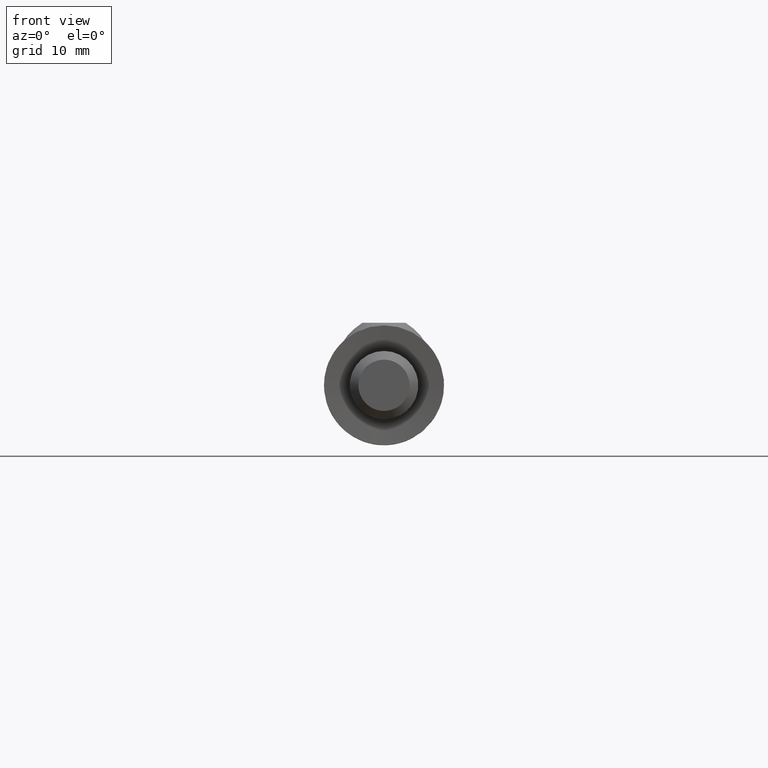
[diagram: clean part render]
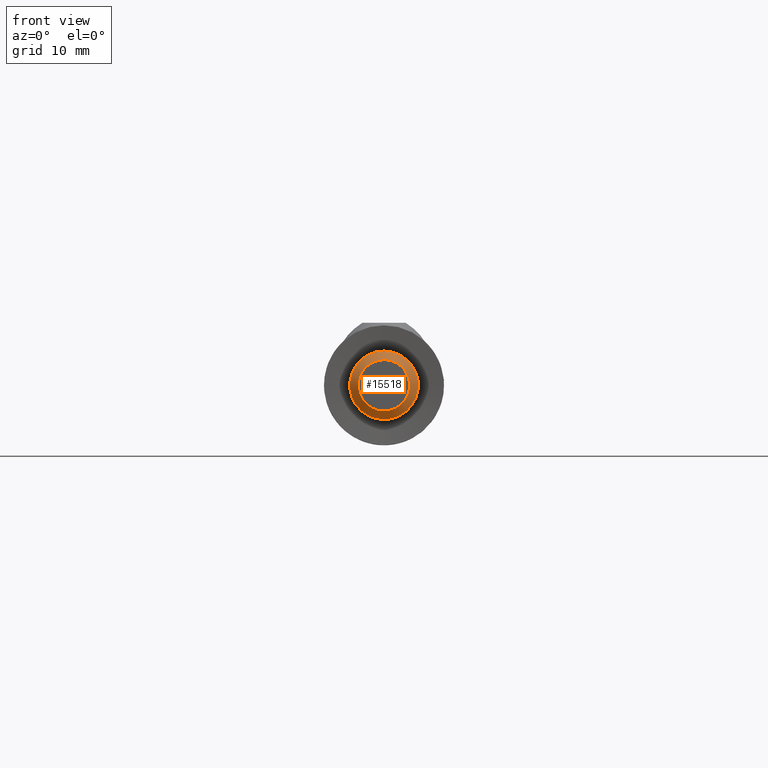
[diagram: same view with one face highlighted and labeled with its STEP entity id]
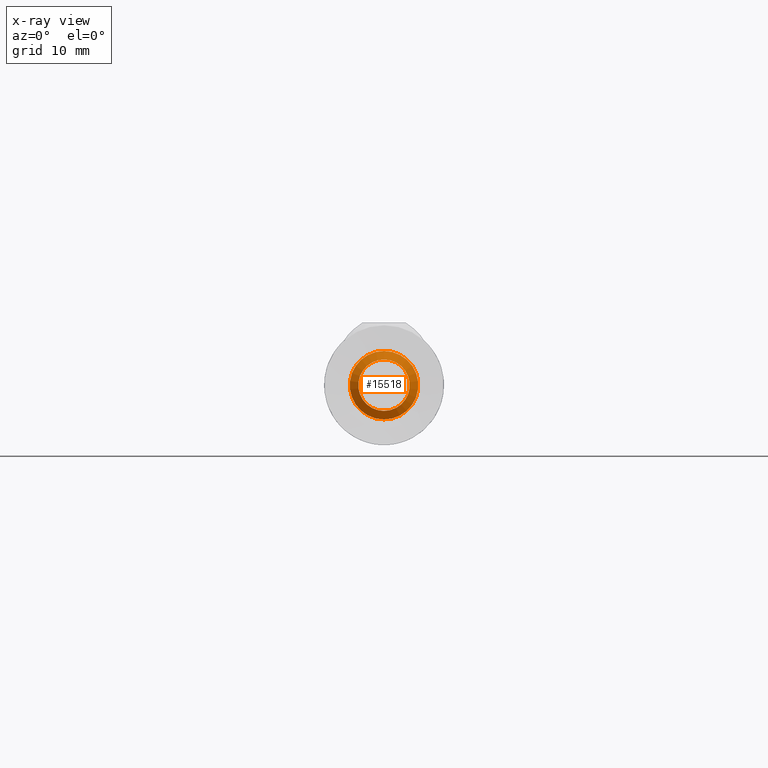
[diagram: x-ray of the same camera — body ghosted, the highlighted face saturated]
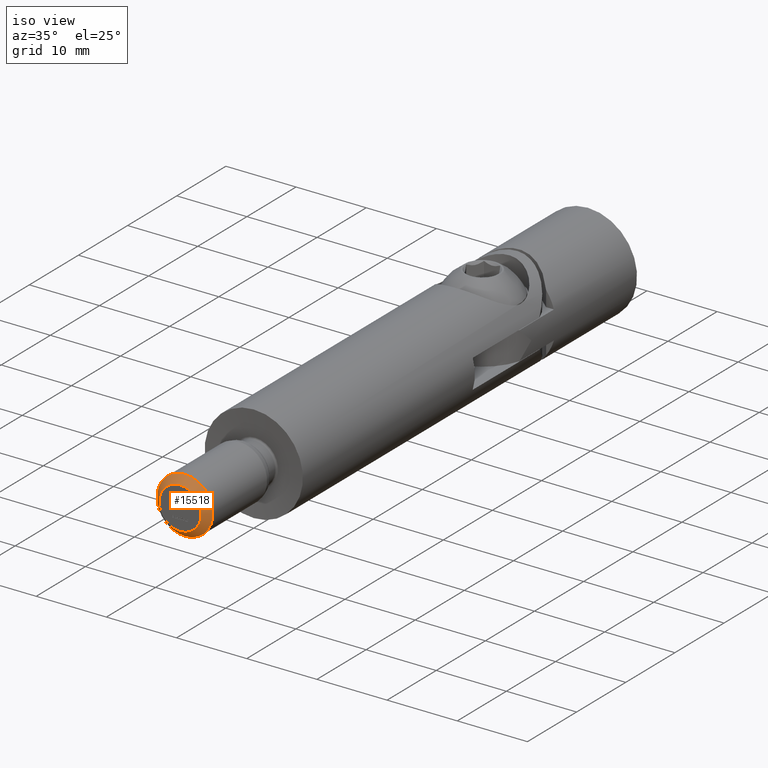
[diagram: same view with one face highlighted and labeled with its STEP entity id]
A machine part, front view. The second image highlights one B-rep face of the part: STEP entity #15518.
The next image is the same camera in x-ray: the body ghosted, the highlighted face saturated — about 0% of this face is hidden behind the body in this view.
A second angle (iso view) of the same face is appended — the face is thin or edge-on in the first view.
In plain terms, the highlighted conical surface has half-angle 45 deg.
Its self-contained STEP definition (entity closure, byte-faithful):
#2106 = CARTESIAN_POINT ( 'NONE',  ( 0.000000000000000000, -13.99999999999999822, 0.000000000000000000 ) ) ;
#4324 = VERTEX_POINT ( 'NONE', #17375 ) ;
#5074 = EDGE_LOOP ( 'NONE', ( #9044 ) ) ;
#5275 = FACE_BOUND ( 'NONE', #17810, .T. ) ;
#6491 = CIRCLE ( 'NONE', #15179, 3.000000000000001776 ) ;
#6564 = DIRECTION ( 'NONE',  ( 0.000000000000000000, 0.000000000000000000, -1.000000000000000000 ) ) ;
#6873 = CONICAL_SURFACE ( 'NONE', #8752, 3.000000000000001776, 0.7853981633974479459 ) ;
#6941 = DIRECTION ( 'NONE',  ( 0.000000000000000000, 0.000000000000000000, 1.000000000000000000 ) ) ;
#7386 = DIRECTION ( 'NONE',  ( -0.000000000000000000, -1.000000000000000000, -0.000000000000000000 ) ) ;
#8752 = AXIS2_PLACEMENT_3D ( 'NONE', #14205, #11440, #6941 ) ;
#9044 = ORIENTED_EDGE ( 'NONE', *, *, #9316, .T. ) ;
#9316 = EDGE_CURVE ( 'NONE', #4324, #4324, #16540, .T. ) ;
#9918 = CARTESIAN_POINT ( 'NONE',  ( 0.000000000000000000, -15.00000000000000000, -3.000000000000001776 ) ) ;
#10071 = EDGE_CURVE ( 'NONE', #18003, #18003, #6491, .T. ) ;
#11440 = DIRECTION ( 'NONE',  ( 0.000000000000000000, 1.000000000000000000, 0.000000000000000000 ) ) ;
#13690 = DIRECTION ( 'NONE',  ( -0.000000000000000000, -1.000000000000000000, -0.000000000000000000 ) ) ;
#14205 = CARTESIAN_POINT ( 'NONE',  ( 0.000000000000000000, -15.00000000000000000, 0.000000000000000000 ) ) ;
#14550 = ORIENTED_EDGE ( 'NONE', *, *, #10071, .F. ) ;
#14647 = CARTESIAN_POINT ( 'NONE',  ( 0.000000000000000000, -15.00000000000000000, 0.000000000000000000 ) ) ;
#15179 = AXIS2_PLACEMENT_3D ( 'NONE', #14647, #7386, #17571 ) ;
#15518 = ADVANCED_FACE ( 'NONE', ( #18474, #5275 ), #6873, .T. ) ;
#15691 = AXIS2_PLACEMENT_3D ( 'NONE', #2106, #13690, #6564 ) ;
#16540 = CIRCLE ( 'NONE', #15691, 4.000000000000001776 ) ;
#17375 = CARTESIAN_POINT ( 'NONE',  ( 0.000000000000000000, -13.99999999999999822, -4.000000000000001776 ) ) ;
#17571 = DIRECTION ( 'NONE',  ( 0.000000000000000000, 0.000000000000000000, -1.000000000000000000 ) ) ;
#17810 = EDGE_LOOP ( 'NONE', ( #14550 ) ) ;
#18003 = VERTEX_POINT ( 'NONE', #9918 ) ;
#18474 = FACE_OUTER_BOUND ( 'NONE', #5074, .T. ) ;